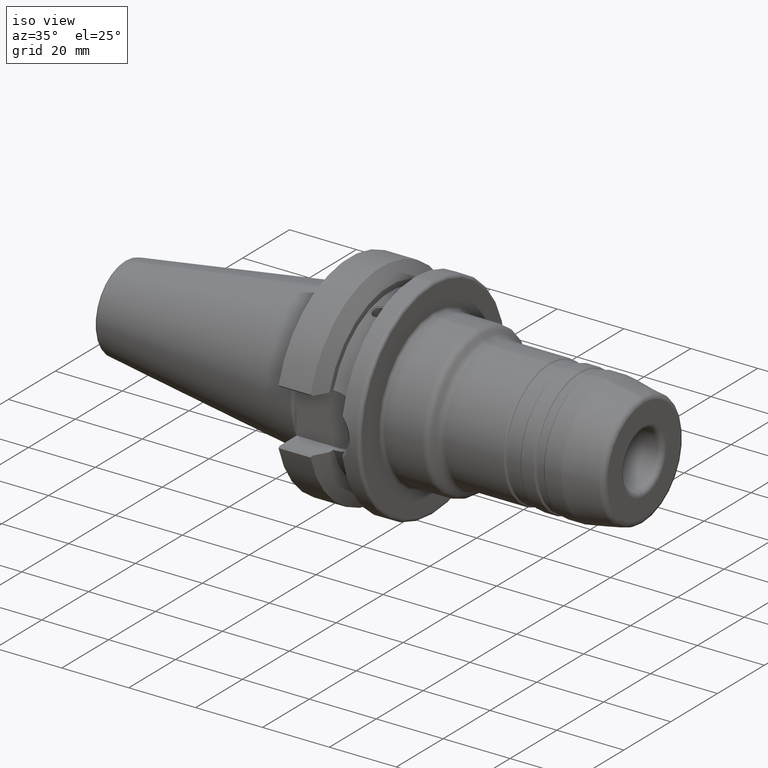
[diagram: clean part render]
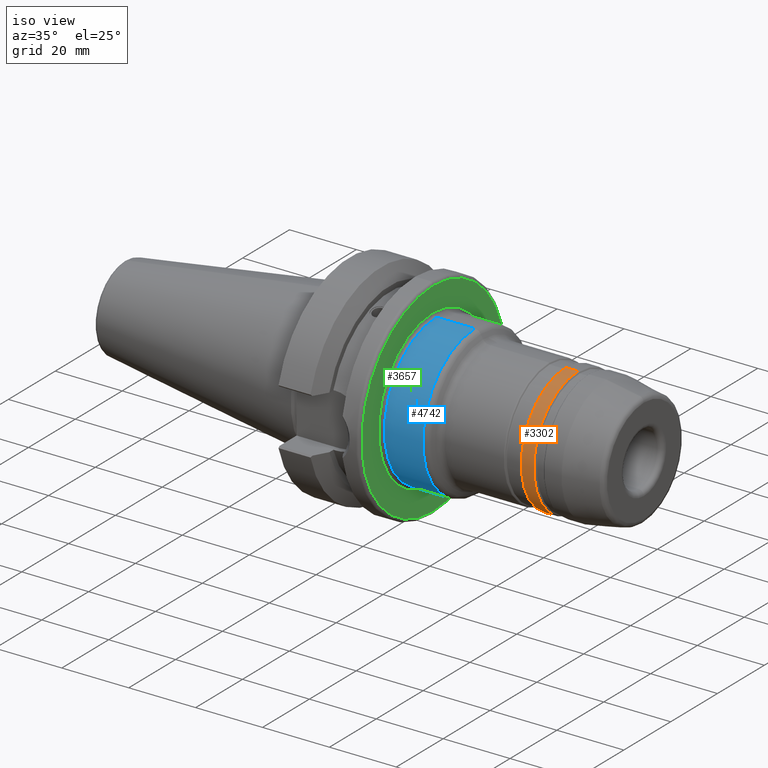
[diagram: same view with three faces highlighted in distinct colors, each labeled with its STEP entity id]
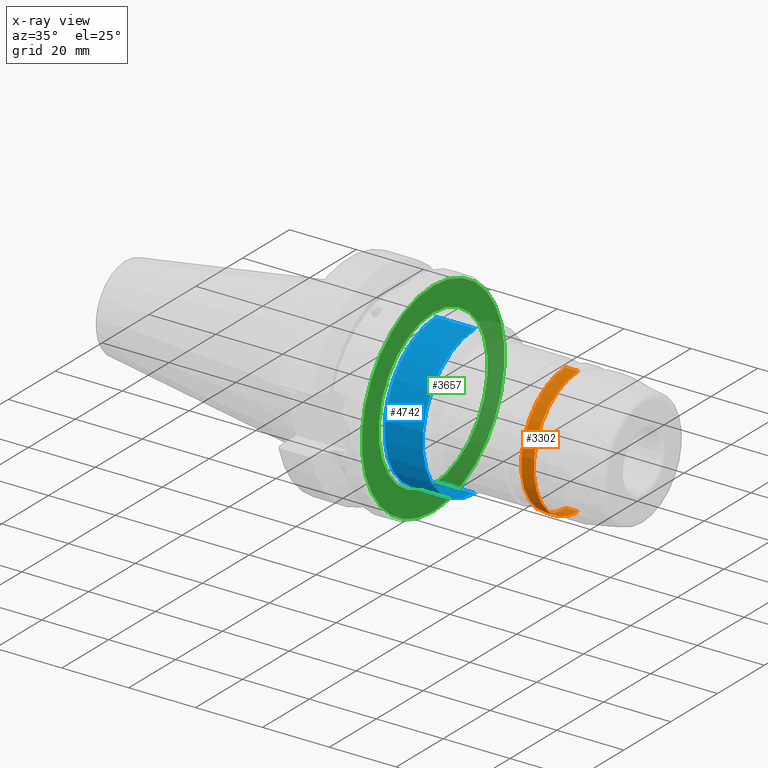
[diagram: x-ray of the same camera — body ghosted, the three highlighted faces saturated]
A machine part, iso view with three faces highlighted in distinct colors.
The next image is the same camera in x-ray (body ghosted, the three faces saturated) — at least one of them is partly hidden behind the body in this view.
Their STEP definitions:

[orange] entity #3302 — the highlighted cylindrical surface (partial cylindrical patch) has radius 19 mm, axis along (1, 0, 0).
#594=DIRECTION('',(-1.E0,0.E0,0.E0));
#595=VECTOR('',#594,3.729829407783E0);
#596=CARTESIAN_POINT('',(7.036491470389E1,0.E0,-1.9E1));
#597=LINE('',#596,#595);
#598=DIRECTION('',(-1.E0,0.E0,0.E0));
#599=VECTOR('',#598,3.729829407783E0);
#600=CARTESIAN_POINT('',(7.036491470389E1,0.E0,1.9E1));
#601=LINE('',#600,#599);
#602=CARTESIAN_POINT('',(7.036491470389E1,0.E0,0.E0));
#603=DIRECTION('',(-1.E0,0.E0,0.E0));
#604=DIRECTION('',(0.E0,0.E0,-1.E0));
#605=AXIS2_PLACEMENT_3D('',#602,#603,#604);
#617=CARTESIAN_POINT('',(6.663508529611E1,0.E0,0.E0));
#618=DIRECTION('',(-1.E0,0.E0,0.E0));
#619=DIRECTION('',(0.E0,0.E0,-1.E0));
#620=AXIS2_PLACEMENT_3D('',#617,#618,#619);
#2269=CARTESIAN_POINT('',(7.036491470389E1,0.E0,-1.9E1));
#2270=VERTEX_POINT('',#2269);
#2271=CARTESIAN_POINT('',(6.663508529611E1,0.E0,-1.9E1));
#2272=VERTEX_POINT('',#2271);
#2329=CARTESIAN_POINT('',(7.036491470389E1,0.E0,1.9E1));
#2330=VERTEX_POINT('',#2329);
#2331=CARTESIAN_POINT('',(6.663508529611E1,0.E0,1.9E1));
#2332=VERTEX_POINT('',#2331);
#3290=CARTESIAN_POINT('',(0.E0,0.E0,0.E0));
#3291=DIRECTION('',(1.E0,0.E0,0.E0));
#3292=DIRECTION('',(0.E0,0.E0,1.E0));
#3293=AXIS2_PLACEMENT_3D('',#3290,#3291,#3292);
#3294=CYLINDRICAL_SURFACE('',#3293,1.9E1);
#3295=ORIENTED_EDGE('',*,*,#3280,.T.);
#3297=ORIENTED_EDGE('',*,*,#3296,.T.);
#3298=ORIENTED_EDGE('',*,*,#3283,.F.);
#3299=ORIENTED_EDGE('',*,*,#3254,.F.);
#3300=EDGE_LOOP('',(#3295,#3297,#3298,#3299));
#3301=FACE_OUTER_BOUND('',#3300,.F.);
#3302=ADVANCED_FACE('',(#3301),#3294,.T.);
#606=CIRCLE('',#605,1.9E1);
#621=CIRCLE('',#620,1.9E1);
#3254=EDGE_CURVE('',#2270,#2330,#606,.T.);
#3280=EDGE_CURVE('',#2270,#2272,#597,.T.);
#3283=EDGE_CURVE('',#2330,#2332,#601,.T.);
#3296=EDGE_CURVE('',#2272,#2332,#621,.T.);

[blue] entity #4742 — the highlighted cylindrical surface (partial cylindrical patch) has radius 22.25 mm, axis along (1, 0, 0).
#1977=CARTESIAN_POINT('',(2.8E1,0.E0,0.E0));
#1978=DIRECTION('',(1.E0,0.E0,0.E0));
#1979=DIRECTION('',(0.E0,0.E0,1.E0));
#1980=AXIS2_PLACEMENT_3D('',#1977,#1978,#1979);
#1982=DIRECTION('',(-1.E0,-1.241908783715E-12,0.E0));
#1983=VECTOR('',#1982,1.146891108675E1);
#1984=CARTESIAN_POINT('',(3.946891108675E1,0.E0,2.225E1));
#1985=LINE('',#1984,#1983);
#1986=CARTESIAN_POINT('',(3.946891108675E1,0.E0,0.E0));
#1987=DIRECTION('',(-1.E0,0.E0,0.E0));
#1988=DIRECTION('',(0.E0,0.E0,-1.E0));
#1989=AXIS2_PLACEMENT_3D('',#1986,#1987,#1988);
#1991=DIRECTION('',(-1.E0,1.241845757405E-12,0.E0));
#1992=VECTOR('',#1991,1.146891108675E1);
#1993=CARTESIAN_POINT('',(3.946891108675E1,0.E0,-2.225E1));
#1994=LINE('',#1993,#1992);
#2293=CARTESIAN_POINT('',(3.946891108675E1,0.E0,-2.225E1));
#2294=VERTEX_POINT('',#2293);
#2353=CARTESIAN_POINT('',(3.946891108675E1,0.E0,2.225E1));
#2354=VERTEX_POINT('',#2353);
#2371=CARTESIAN_POINT('',(2.8E1,0.E0,2.225E1));
#2372=CARTESIAN_POINT('',(2.8E1,0.E0,-2.225E1));
#2373=VERTEX_POINT('',#2371);
#2374=VERTEX_POINT('',#2372);
#4731=CARTESIAN_POINT('',(0.E0,0.E0,0.E0));
#4732=DIRECTION('',(1.E0,0.E0,0.E0));
#4733=DIRECTION('',(0.E0,0.E0,1.E0));
#4734=AXIS2_PLACEMENT_3D('',#4731,#4732,#4733);
#4735=CYLINDRICAL_SURFACE('',#4734,2.225E1);
#4736=ORIENTED_EDGE('',*,*,#4725,.F.);
#4737=ORIENTED_EDGE('',*,*,#3621,.F.);
#4738=ORIENTED_EDGE('',*,*,#3590,.F.);
#4739=ORIENTED_EDGE('',*,*,#3618,.T.);
#4740=EDGE_LOOP('',(#4736,#4737,#4738,#4739));
#4741=FACE_OUTER_BOUND('',#4740,.F.);
#4742=ADVANCED_FACE('',(#4741),#4735,.T.);
#1981=CIRCLE('',#1980,2.225E1);
#1990=CIRCLE('',#1989,2.225E1);
#3590=EDGE_CURVE('',#2294,#2354,#1990,.T.);
#3618=EDGE_CURVE('',#2294,#2374,#1994,.T.);
#3621=EDGE_CURVE('',#2354,#2373,#1985,.T.);
#4725=EDGE_CURVE('',#2373,#2374,#1981,.T.);

[green] entity #3657 — the highlighted planar face has unit normal (-1, 0, 0).
#832=CARTESIAN_POINT('',(2.7E1,0.E0,0.E0));
#833=DIRECTION('',(-1.E0,0.E0,0.E0));
#834=DIRECTION('',(0.E0,0.E0,-1.E0));
#835=AXIS2_PLACEMENT_3D('',#832,#833,#834);
#837=CARTESIAN_POINT('',(2.7E1,0.E0,0.E0));
#838=DIRECTION('',(-1.E0,0.E0,0.E0));
#839=DIRECTION('',(0.E0,0.E0,1.E0));
#840=AXIS2_PLACEMENT_3D('',#837,#838,#839);
#842=CARTESIAN_POINT('',(2.7E1,0.E0,0.E0));
#843=DIRECTION('',(1.E0,0.E0,0.E0));
#844=DIRECTION('',(0.E0,0.E0,1.E0));
#845=AXIS2_PLACEMENT_3D('',#842,#843,#844);
#847=CARTESIAN_POINT('',(2.7E1,0.E0,0.E0));
#848=DIRECTION('',(1.E0,0.E0,0.E0));
#849=DIRECTION('',(0.E0,0.E0,-1.E0));
#850=AXIS2_PLACEMENT_3D('',#847,#848,#849);
#2032=CARTESIAN_POINT('',(2.7E1,0.E0,-3.05E1));
#2033=CARTESIAN_POINT('',(2.7E1,0.E0,3.05E1));
#2034=VERTEX_POINT('',#2032);
#2035=VERTEX_POINT('',#2033);
#2367=CARTESIAN_POINT('',(2.7E1,0.E0,2.325E1));
#2368=CARTESIAN_POINT('',(2.7E1,0.E0,-2.325E1));
#2369=VERTEX_POINT('',#2367);
#2370=VERTEX_POINT('',#2368);
#3641=CARTESIAN_POINT('',(2.7E1,0.E0,0.E0));
#3642=DIRECTION('',(-1.E0,0.E0,0.E0));
#3643=DIRECTION('',(0.E0,0.E0,-1.E0));
#3644=AXIS2_PLACEMENT_3D('',#3641,#3642,#3643);
#3645=PLANE('',#3644);
#3647=ORIENTED_EDGE('',*,*,#3646,.T.);
#3649=ORIENTED_EDGE('',*,*,#3648,.T.);
#3650=EDGE_LOOP('',(#3647,#3649));
#3651=FACE_OUTER_BOUND('',#3650,.F.);
#3653=ORIENTED_EDGE('',*,*,#3652,.T.);
#3654=ORIENTED_EDGE('',*,*,#3631,.T.);
#3655=EDGE_LOOP('',(#3653,#3654));
#3656=FACE_BOUND('',#3655,.F.);
#3657=ADVANCED_FACE('',(#3651,#3656),#3645,.F.);
#836=CIRCLE('',#835,3.05E1);
#841=CIRCLE('',#840,3.05E1);
#846=CIRCLE('',#845,2.325E1);
#851=CIRCLE('',#850,2.325E1);
#3631=EDGE_CURVE('',#2370,#2369,#851,.T.);
#3646=EDGE_CURVE('',#2034,#2035,#836,.T.);
#3648=EDGE_CURVE('',#2035,#2034,#841,.T.);
#3652=EDGE_CURVE('',#2369,#2370,#846,.T.);